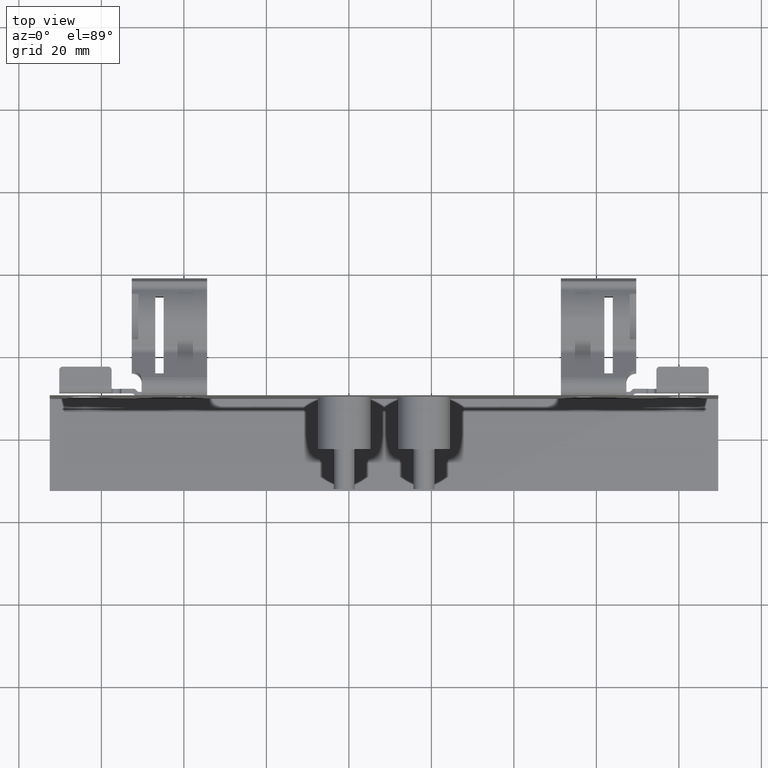
[diagram: clean part render]
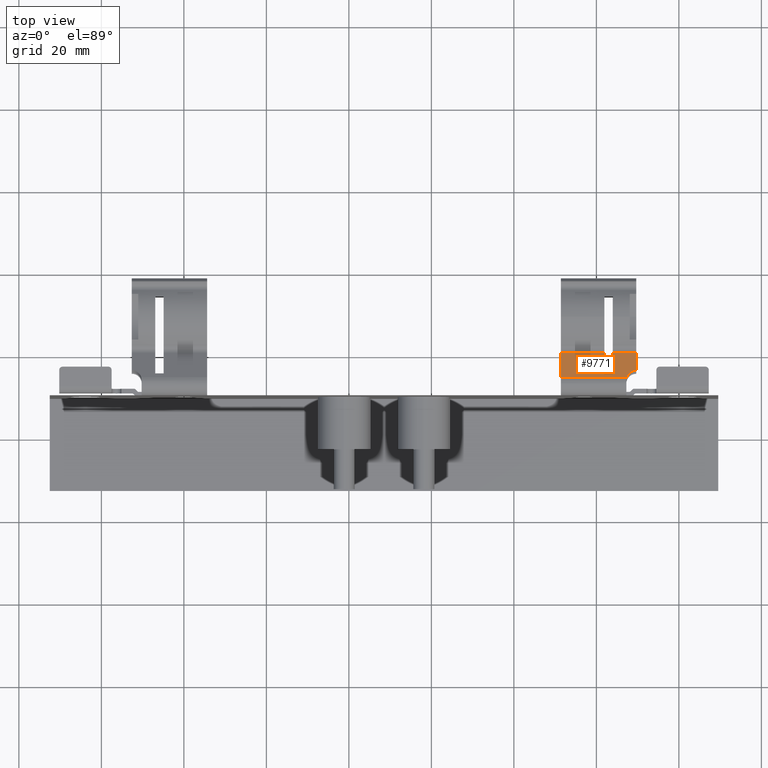
[diagram: same view with one face highlighted and labeled with its STEP entity id]
A machine part, top view. The second image highlights one B-rep face of the part: STEP entity #9771.
In plain terms, the highlighted planar face has unit normal (0, -0.5, -0.866).
Its self-contained STEP definition (entity closure, byte-faithful):
#92 = CARTESIAN_POINT ( 'NONE',  ( 4.317999999999999600, 0.6419999907454320100, 0.3411673009361346800 ) ) ;
#149 = LINE ( 'NONE', #9303, #10859 ) ;
#175 = CARTESIAN_POINT ( 'NONE',  ( 4.240218250902513500, 0.6179243828971858800, 0.3550673596082230000 ) ) ;
#596 = VERTEX_POINT ( 'NONE', #7800 ) ;
#648 = CARTESIAN_POINT ( 'NONE',  ( 4.227308341161931400, 0.5769998769133453100, 0.3786951341544462200 ) ) ;
#743 = FACE_OUTER_BOUND ( 'NONE', #4898, .T. ) ;
#864 = LINE ( 'NONE', #2177, #8804 ) ;
#1056 = DIRECTION ( 'NONE',  ( -1.000000000000000000, -0.0000000000000000000, -0.0000000000000000000 ) ) ;
#1317 = CARTESIAN_POINT ( 'NONE',  ( 4.093000000000000000, 0.8115000000000013300, 0.2433064249653647000 ) ) ;
#1585 = VERTEX_POINT ( 'NONE', #2199 ) ;
#1595 = CARTESIAN_POINT ( 'NONE',  ( 4.317999999999999600, 0.8115000000000013300, 0.2433064249653647000 ) ) ;
#1630 = CARTESIAN_POINT ( 'NONE',  ( 3.597999999999999900, 0.8115000000000013300, 0.2433064249653647000 ) ) ;
#1668 = CARTESIAN_POINT ( 'NONE',  ( 4.317999999999999600, 0.8115000000000013300, 0.2433064249653647300 ) ) ;
#2177 = CARTESIAN_POINT ( 'NONE',  ( 3.597999999999999900, 0.5769998769133454200, 0.3786951341544462200 ) ) ;
#2199 = CARTESIAN_POINT ( 'NONE',  ( 4.093000000000000000, 0.8115000000000013300, 0.2433064249653647000 ) ) ;
#2358 = DIRECTION ( 'NONE',  ( 0.0000000000000000000, -0.8660254037844384900, 0.5000000000000002200 ) ) ;
#2461 = ORIENTED_EDGE ( 'NONE', *, *, #8447, .T. ) ;
#2488 = DIRECTION ( 'NONE',  ( 1.000000000000000000, 0.0000000000000000000, 0.0000000000000000000 ) ) ;
#2625 = VERTEX_POINT ( 'NONE', #3028 ) ;
#2795 = PLANE ( 'NONE',  #12231 ) ;
#2814 = EDGE_CURVE ( 'NONE', #4834, #6279, #11217, .T. ) ;
#3028 = CARTESIAN_POINT ( 'NONE',  ( 4.012999999999999900, 0.8115000000000012200, 0.2433064249653647300 ) ) ;
#3066 = DIRECTION ( 'NONE',  ( -1.000000000000000000, -0.0000000000000000000, -0.0000000000000000000 ) ) ;
#3081 = VERTEX_POINT ( 'NONE', #11816 ) ;
#3539 = VECTOR ( 'NONE', #1056, 39.37007874015748100 ) ;
#3868 = EDGE_CURVE ( 'NONE', #3966, #2625, #13113, .T. ) ;
#3958 = EDGE_CURVE ( 'NONE', #4834, #3081, #12135, .T. ) ;
#3966 = VERTEX_POINT ( 'NONE', #11327 ) ;
#4060 = EDGE_CURVE ( 'NONE', #10659, #2625, #149, .T. ) ;
#4268 = LINE ( 'NONE', #1668, #10088 ) ;
#4679 = VECTOR ( 'NONE', #2358, 39.37007874015749600 ) ;
#4834 = VERTEX_POINT ( 'NONE', #648 ) ;
#4884 = DIRECTION ( 'NONE',  ( 0.0000000000000000000, -0.5000000000000010000, -0.8660254037844380400 ) ) ;
#4898 = EDGE_LOOP ( 'NONE', ( #10989, #8924, #6293, #2461, #10789, #12758, #7047, #13326, #10782 ) ) ;
#5077 = VERTEX_POINT ( 'NONE', #1595 ) ;
#5197 = VECTOR ( 'NONE', #12806, 39.37007874015748900 ) ;
#5271 = CARTESIAN_POINT ( 'NONE',  ( 4.227308341161931400, 0.5769998769133453100, 0.3786951341544462200 ) ) ;
#5407 = EDGE_CURVE ( 'NONE', #1585, #5077, #12227, .T. ) ;
#5984 = EDGE_CURVE ( 'NONE', #3081, #10659, #864, .T. ) ;
#6279 = VERTEX_POINT ( 'NONE', #13158 ) ;
#6293 = ORIENTED_EDGE ( 'NONE', *, *, #8591, .T. ) ;
#6294 = VECTOR ( 'NONE', #3066, 39.37007874015748100 ) ;
#7047 = ORIENTED_EDGE ( 'NONE', *, *, #5984, .F. ) ;
#7242 = CARTESIAN_POINT ( 'NONE',  ( 4.012999999999999900, 0.6124999907454319300, 0.3581991338772284000 ) ) ;
#7800 = CARTESIAN_POINT ( 'NONE',  ( 4.093000000000000000, 0.6124999907454320400, 0.3581991338772284000 ) ) ;
#8447 = EDGE_CURVE ( 'NONE', #596, #3966, #8851, .T. ) ;
#8581 = DIRECTION ( 'NONE',  ( 1.000000000000000000, 0.0000000000000000000, 0.0000000000000000000 ) ) ;
#8591 = EDGE_CURVE ( 'NONE', #1585, #596, #10513, .T. ) ;
#8708 = CARTESIAN_POINT ( 'NONE',  ( 4.012999999999999900, 0.6124999907454320400, 0.3581991338772286300 ) ) ;
#8804 = VECTOR ( 'NONE', #9394, 39.37007874015748100 ) ;
#8851 = LINE ( 'NONE', #7242, #3539 ) ;
#8924 = ORIENTED_EDGE ( 'NONE', *, *, #5407, .F. ) ;
#9303 = CARTESIAN_POINT ( 'NONE',  ( 4.317999999999999600, 0.8115000000000013300, 0.2433064249653647300 ) ) ;
#9394 = DIRECTION ( 'NONE',  ( 0.0000000000000000000, 0.8660254037844380400, -0.5000000000000010000 ) ) ;
#9461 = VECTOR ( 'NONE', #2488, 39.37007874015748100 ) ;
#9564 = CARTESIAN_POINT ( 'NONE',  ( 4.275097444025023600, 0.6429228397826466400, 0.3406344937960769100 ) ) ;
#9573 = CARTESIAN_POINT ( 'NONE',  ( 4.317999999999999600, 0.8115000000000013300, 0.2433064249653647300 ) ) ;
#9771 = ADVANCED_FACE ( 'NONE', ( #743 ), #2795, .F. ) ;
#9946 = DIRECTION ( 'NONE',  ( 0.0000000000000000000, -0.8660254037844379300, 0.5000000000000010000 ) ) ;
#10088 = VECTOR ( 'NONE', #9946, 39.37007874015748900 ) ;
#10513 = LINE ( 'NONE', #1317, #4679 ) ;
#10659 = VERTEX_POINT ( 'NONE', #1630 ) ;
#10781 = CARTESIAN_POINT ( 'NONE',  ( 4.317999999999999600, 0.5769998769133454200, 0.3786951341544462200 ) ) ;
#10782 = ORIENTED_EDGE ( 'NONE', *, *, #2814, .T. ) ;
#10789 = ORIENTED_EDGE ( 'NONE', *, *, #3868, .T. ) ;
#10859 = VECTOR ( 'NONE', #8581, 39.37007874015748100 ) ;
#10989 = ORIENTED_EDGE ( 'NONE', *, *, #12898, .F. ) ;
#11092 = CARTESIAN_POINT ( 'NONE',  ( 4.317999999999999600, 0.5769998769133454200, 0.3786951341544462200 ) ) ;
#11217 =( BOUNDED_CURVE ( )  B_SPLINE_CURVE ( 3, ( #5271, #175, #9564, #92 ),
 .UNSPECIFIED., .F., .F. ) 
 B_SPLINE_CURVE_WITH_KNOTS ( ( 4, 4 ),
 ( 0.0000000000000000000, 0.003203283253084219700 ),
 .UNSPECIFIED. ) 
 CURVE ( )  GEOMETRIC_REPRESENTATION_ITEM ( )  RATIONAL_B_SPLINE_CURVE ( ( 1.000000000000000000, 0.8667216824610136600, 0.8667216824610136600, 1.000000000000000000 ) ) 
 REPRESENTATION_ITEM ( '' )  );
#11327 = CARTESIAN_POINT ( 'NONE',  ( 4.013000000000000800, 0.6124999907454320400, 0.3581991338772285100 ) ) ;
#11816 = CARTESIAN_POINT ( 'NONE',  ( 3.597999999999999900, 0.5769998769133454200, 0.3786951341544462200 ) ) ;
#12123 = DIRECTION ( 'NONE',  ( 0.0000000000000000000, 0.8660254037844380400, -0.5000000000000010000 ) ) ;
#12135 = LINE ( 'NONE', #10781, #6294 ) ;
#12227 = LINE ( 'NONE', #9573, #9461 ) ;
#12231 = AXIS2_PLACEMENT_3D ( 'NONE', #11092, #4884, #12123 ) ;
#12758 = ORIENTED_EDGE ( 'NONE', *, *, #4060, .F. ) ;
#12806 = DIRECTION ( 'NONE',  ( 0.0000000000000000000, 0.8660254037844379300, -0.5000000000000012200 ) ) ;
#12898 = EDGE_CURVE ( 'NONE', #5077, #6279, #4268, .T. ) ;
#13113 = LINE ( 'NONE', #8708, #5197 ) ;
#13158 = CARTESIAN_POINT ( 'NONE',  ( 4.317999999999999600, 0.6419999907454320100, 0.3411673009361346800 ) ) ;
#13326 = ORIENTED_EDGE ( 'NONE', *, *, #3958, .F. ) ;